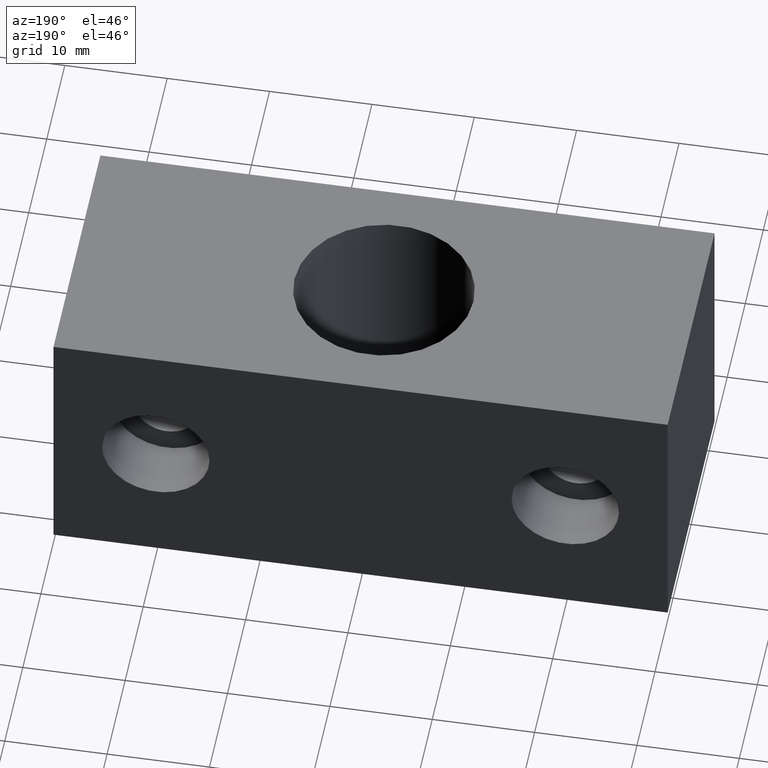
[diagram: clean part render]
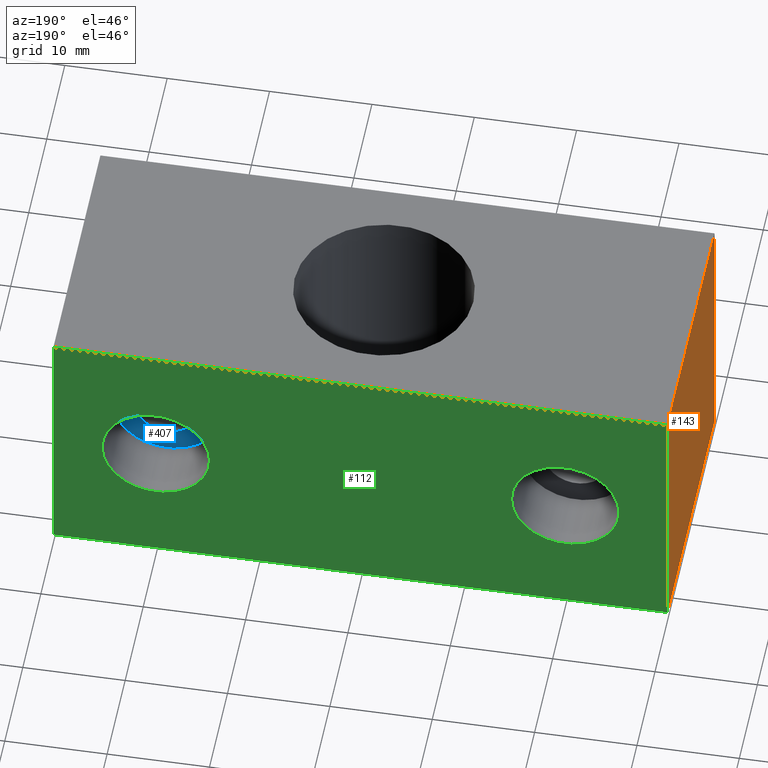
[diagram: same view with three faces highlighted in distinct colors, each labeled with its STEP entity id]
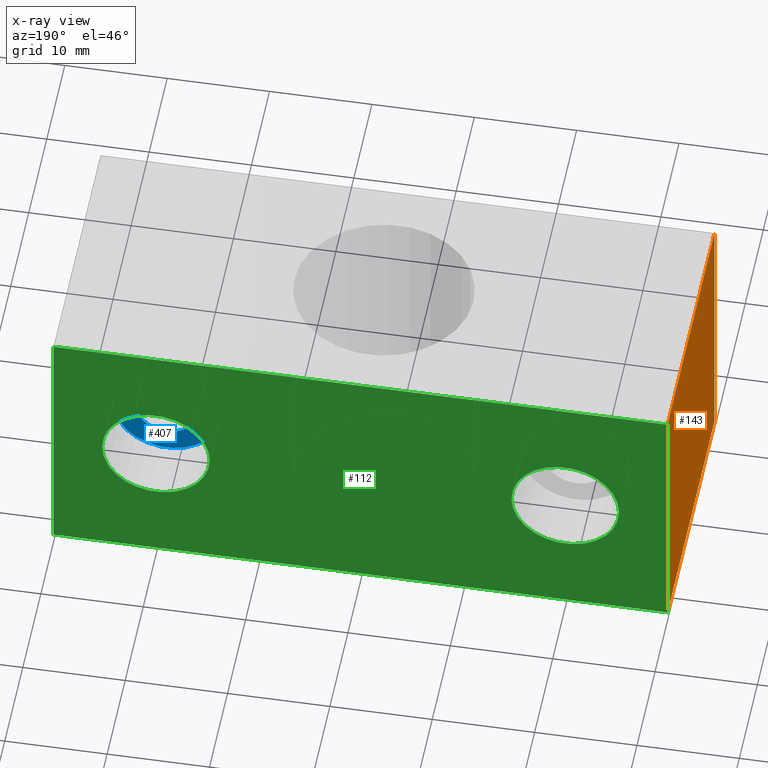
[diagram: x-ray of the same camera — body ghosted, the three highlighted faces saturated]
A machine part, auxiliary view with three faces highlighted in distinct colors.
The next image is the same camera in x-ray (body ghosted, the three faces saturated) — at least one of them is partly hidden behind the body in this view.
Their STEP definitions:

[orange] entity #143 — the highlighted planar face has unit normal (-1, 0, 0).
#47=CARTESIAN_POINT('',(-30.0,13.0,-13.0));
#48=VERTEX_POINT('',#47);
#55=CARTESIAN_POINT('',(-30.0,13.0,13.0));
#56=VERTEX_POINT('',#55);
#57=CARTESIAN_POINT('',(-30.0,13.0,-13.0));
#58=DIRECTION('',(0.0,0.0,1.0));
#59=VECTOR('',#58,26.0);
#60=LINE('',#57,#59);
#61=EDGE_CURVE('',#48,#56,#60,.T.);
#113=CARTESIAN_POINT('',(-30.0,13.0,-13.0));
#114=DIRECTION('',(-1.0,0.0,0.0));
#115=DIRECTION('',(0.0,-1.0,0.0));
#116=AXIS2_PLACEMENT_3D('',#113,#114,#115);
#117=PLANE('',#116);
#118=CARTESIAN_POINT('',(-30.0,-13.0,-13.0));
#119=VERTEX_POINT('',#118);
#120=CARTESIAN_POINT('',(-30.0,13.0,-13.0));
#121=DIRECTION('',(0.0,-1.0,0.0));
#122=VECTOR('',#121,26.0);
#123=LINE('',#120,#122);
#124=EDGE_CURVE('',#48,#119,#123,.T.);
#125=ORIENTED_EDGE('',*,*,#124,.T.);
#126=CARTESIAN_POINT('',(-30.0,-13.0,13.0));
#127=VERTEX_POINT('',#126);
#128=CARTESIAN_POINT('',(-30.0,-13.0,-13.0));
#129=DIRECTION('',(0.0,0.0,1.0));
#130=VECTOR('',#129,26.0);
#131=LINE('',#128,#130);
#132=EDGE_CURVE('',#119,#127,#131,.T.);
#133=ORIENTED_EDGE('',*,*,#132,.T.);
#134=CARTESIAN_POINT('',(-30.0,13.0,13.0));
#135=DIRECTION('',(0.0,-1.0,0.0));
#136=VECTOR('',#135,26.0);
#137=LINE('',#134,#136);
#138=EDGE_CURVE('',#56,#127,#137,.T.);
#139=ORIENTED_EDGE('',*,*,#138,.F.);
#140=ORIENTED_EDGE('',*,*,#61,.F.);
#141=EDGE_LOOP('',(#125,#133,#139,#140));
#142=FACE_OUTER_BOUND('',#141,.T.);
#143=ADVANCED_FACE('',(#142),#117,.T.);

[blue] entity #407 — the highlighted planar face has unit normal (0, 1, 0).
#331=CARTESIAN_POINT('',(23.0,7.000004422703000,0.0));
#332=VERTEX_POINT('',#331);
#339=CARTESIAN_POINT('',(17.000000000000011,7.000004422703000,0.0));
#340=VERTEX_POINT('',#339);
#341=CARTESIAN_POINT('',(20.0,7.000004422703000,0.0));
#342=DIRECTION('',(0.0,1.0,6.123234E-017));
#343=DIRECTION('',(1.0,0.0,0.0));
#344=AXIS2_PLACEMENT_3D('',#341,#342,#343);
#345=CIRCLE('',#344,2.999999999999988);
#346=EDGE_CURVE('',#332,#340,#345,.T.);
#348=CARTESIAN_POINT('',(20.0,7.000004422703000,0.0));
#349=DIRECTION('',(0.0,1.0,6.123234E-017));
#350=DIRECTION('',(1.0,0.0,0.0));
#351=AXIS2_PLACEMENT_3D('',#348,#349,#350);
#352=CIRCLE('',#351,2.999999999999988);
#353=EDGE_CURVE('',#340,#332,#352,.T.);
#364=CARTESIAN_POINT('',(14.750000000000000,7.000004422703000,0.0));
#365=VERTEX_POINT('',#364);
#366=CARTESIAN_POINT('',(25.250000000000000,7.000004422703000,0.0));
#367=VERTEX_POINT('',#366);
#368=CARTESIAN_POINT('',(20.0,7.000004422703000,0.0));
#369=DIRECTION('',(0.0,1.0,6.123234E-017));
#370=DIRECTION('',(1.0,0.0,0.0));
#371=AXIS2_PLACEMENT_3D('',#368,#369,#370);
#372=CIRCLE('',#371,5.250000000000000);
#373=EDGE_CURVE('',#365,#367,#372,.T.);
#375=CARTESIAN_POINT('',(20.0,7.000004422703000,0.0));
#376=DIRECTION('',(0.0,1.0,6.123234E-017));
#377=DIRECTION('',(1.0,0.0,0.0));
#378=AXIS2_PLACEMENT_3D('',#375,#376,#377);
#379=CIRCLE('',#378,5.250000000000000);
#380=EDGE_CURVE('',#367,#365,#379,.T.);
#394=CARTESIAN_POINT('',(26.300120000064567,7.000004422703000,-6.300120000066912));
#395=DIRECTION('',(0.0,1.0,0.0));
#396=DIRECTION('',(-1.0,0.0,0.0));
#397=AXIS2_PLACEMENT_3D('',#394,#395,#396);
#398=PLANE('',#397);
#399=ORIENTED_EDGE('',*,*,#380,.T.);
#400=ORIENTED_EDGE('',*,*,#373,.T.);
#401=EDGE_LOOP('',(#399,#400));
#402=FACE_OUTER_BOUND('',#401,.T.);
#403=ORIENTED_EDGE('',*,*,#353,.F.);
#404=ORIENTED_EDGE('',*,*,#346,.F.);
#405=EDGE_LOOP('',(#403,#404));
#406=FACE_BOUND('',#405,.T.);
#407=ADVANCED_FACE('',(#402,#406),#398,.T.);

[green] entity #112 — the highlighted planar face has unit normal (0, 1, 0).
#9=CARTESIAN_POINT('',(30.000000000000114,13.0,-13.0));
#10=VERTEX_POINT('',#9);
#17=CARTESIAN_POINT('',(30.000000000000114,13.0,13.0));
#18=VERTEX_POINT('',#17);
#19=CARTESIAN_POINT('',(30.000000000000114,13.0,-13.0));
#20=DIRECTION('',(0.0,0.0,1.0));
#21=VECTOR('',#20,26.0);
#22=LINE('',#19,#21);
#23=EDGE_CURVE('',#10,#18,#22,.T.);
#42=CARTESIAN_POINT('',(30.000000000000114,13.0,-13.0));
#43=DIRECTION('',(0.0,1.0,0.0));
#44=DIRECTION('',(-1.0,0.0,0.0));
#45=AXIS2_PLACEMENT_3D('',#42,#43,#44);
#46=PLANE('',#45);
#47=CARTESIAN_POINT('',(-30.0,13.0,-13.0));
#48=VERTEX_POINT('',#47);
#49=CARTESIAN_POINT('',(30.000000000000114,13.0,-13.0));
#50=DIRECTION('',(-1.0,0.0,0.0));
#51=VECTOR('',#50,60.000000000000114);
#52=LINE('',#49,#51);
#53=EDGE_CURVE('',#10,#48,#52,.T.);
#54=ORIENTED_EDGE('',*,*,#53,.T.);
#55=CARTESIAN_POINT('',(-30.0,13.0,13.0));
#56=VERTEX_POINT('',#55);
#57=CARTESIAN_POINT('',(-30.0,13.0,-13.0));
#58=DIRECTION('',(0.0,0.0,1.0));
#59=VECTOR('',#58,26.0);
#60=LINE('',#57,#59);
#61=EDGE_CURVE('',#48,#56,#60,.T.);
#62=ORIENTED_EDGE('',*,*,#61,.T.);
#63=CARTESIAN_POINT('',(30.000000000000114,13.0,13.0));
#64=DIRECTION('',(-1.0,0.0,0.0));
#65=VECTOR('',#64,60.000000000000114);
#66=LINE('',#63,#65);
#67=EDGE_CURVE('',#18,#56,#66,.T.);
#68=ORIENTED_EDGE('',*,*,#67,.F.);
#69=ORIENTED_EDGE('',*,*,#23,.F.);
#70=EDGE_LOOP('',(#54,#62,#68,#69));
#71=FACE_OUTER_BOUND('',#70,.T.);
#72=CARTESIAN_POINT('',(14.750000000000000,13.0,0.0));
#73=VERTEX_POINT('',#72);
#74=CARTESIAN_POINT('',(25.250000000000000,13.0,0.0));
#75=VERTEX_POINT('',#74);
#76=CARTESIAN_POINT('',(20.0,13.0,0.0));
#77=DIRECTION('',(0.0,1.0,6.123234E-017));
#78=DIRECTION('',(1.0,0.0,0.0));
#79=AXIS2_PLACEMENT_3D('',#76,#77,#78);
#80=CIRCLE('',#79,5.250000000000000);
#81=EDGE_CURVE('',#73,#75,#80,.T.);
#82=ORIENTED_EDGE('',*,*,#81,.F.);
#83=CARTESIAN_POINT('',(20.0,13.0,0.0));
#84=DIRECTION('',(0.0,1.0,6.123234E-017));
#85=DIRECTION('',(1.0,0.0,0.0));
#86=AXIS2_PLACEMENT_3D('',#83,#84,#85);
#87=CIRCLE('',#86,5.250000000000000);
#88=EDGE_CURVE('',#75,#73,#87,.T.);
#89=ORIENTED_EDGE('',*,*,#88,.F.);
#90=EDGE_LOOP('',(#82,#89));
#91=FACE_BOUND('',#90,.T.);
#92=CARTESIAN_POINT('',(-25.249999999999886,13.0,0.0));
#93=VERTEX_POINT('',#92);
#94=CARTESIAN_POINT('',(-14.749999999999886,13.0,0.0));
#95=VERTEX_POINT('',#94);
#96=CARTESIAN_POINT('',(-19.999999999999886,13.0,0.0));
#97=DIRECTION('',(0.0,1.0,6.123234E-017));
#98=DIRECTION('',(1.0,0.0,0.0));
#99=AXIS2_PLACEMENT_3D('',#96,#97,#98);
#100=CIRCLE('',#99,5.250000000000000);
#101=EDGE_CURVE('',#93,#95,#100,.T.);
#102=ORIENTED_EDGE('',*,*,#101,.F.);
#103=CARTESIAN_POINT('',(-19.999999999999886,13.0,0.0));
#104=DIRECTION('',(0.0,1.0,6.123234E-017));
#105=DIRECTION('',(1.0,0.0,0.0));
#106=AXIS2_PLACEMENT_3D('',#103,#104,#105);
#107=CIRCLE('',#106,5.250000000000000);
#108=EDGE_CURVE('',#95,#93,#107,.T.);
#109=ORIENTED_EDGE('',*,*,#108,.F.);
#110=EDGE_LOOP('',(#102,#109));
#111=FACE_BOUND('',#110,.T.);
#112=ADVANCED_FACE('',(#71,#91,#111),#46,.T.);